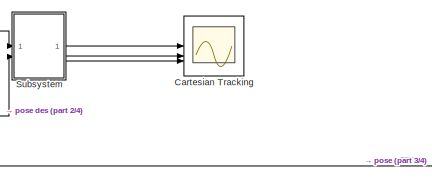
[diagram: root canvas - part 1/4, top center region]
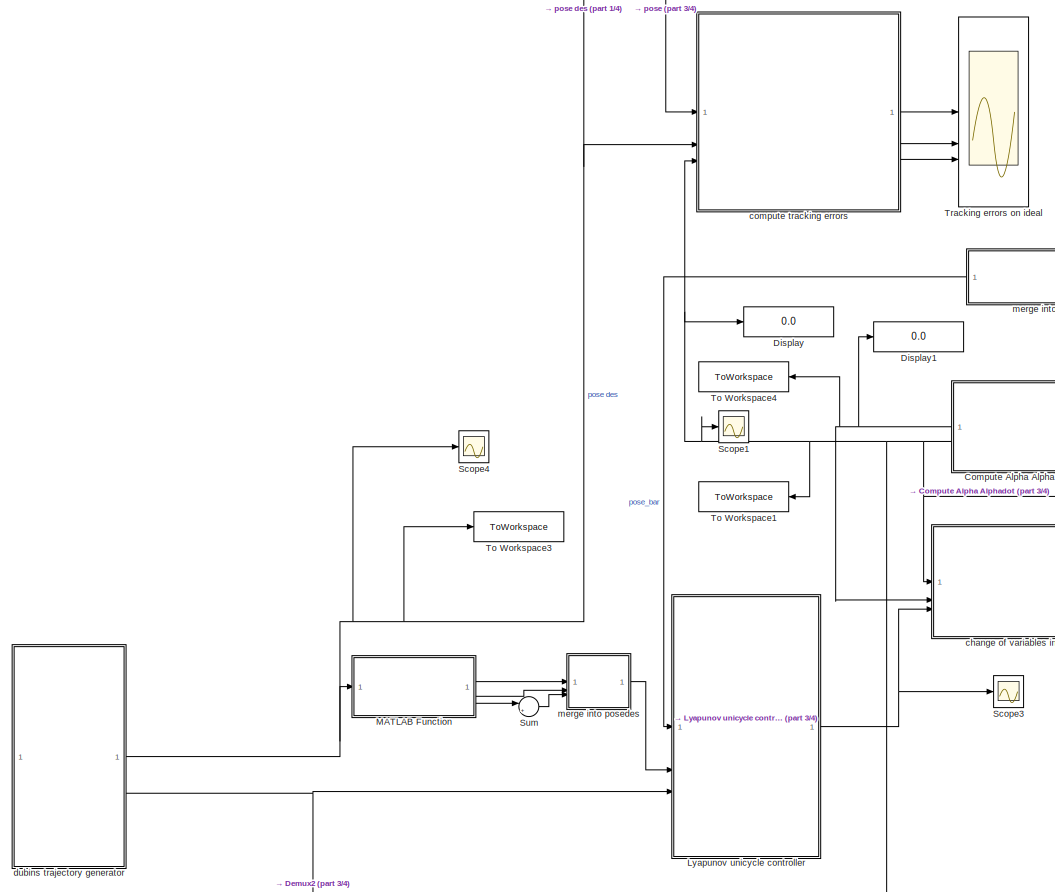
[diagram: root canvas - part 2/4, middle left region]
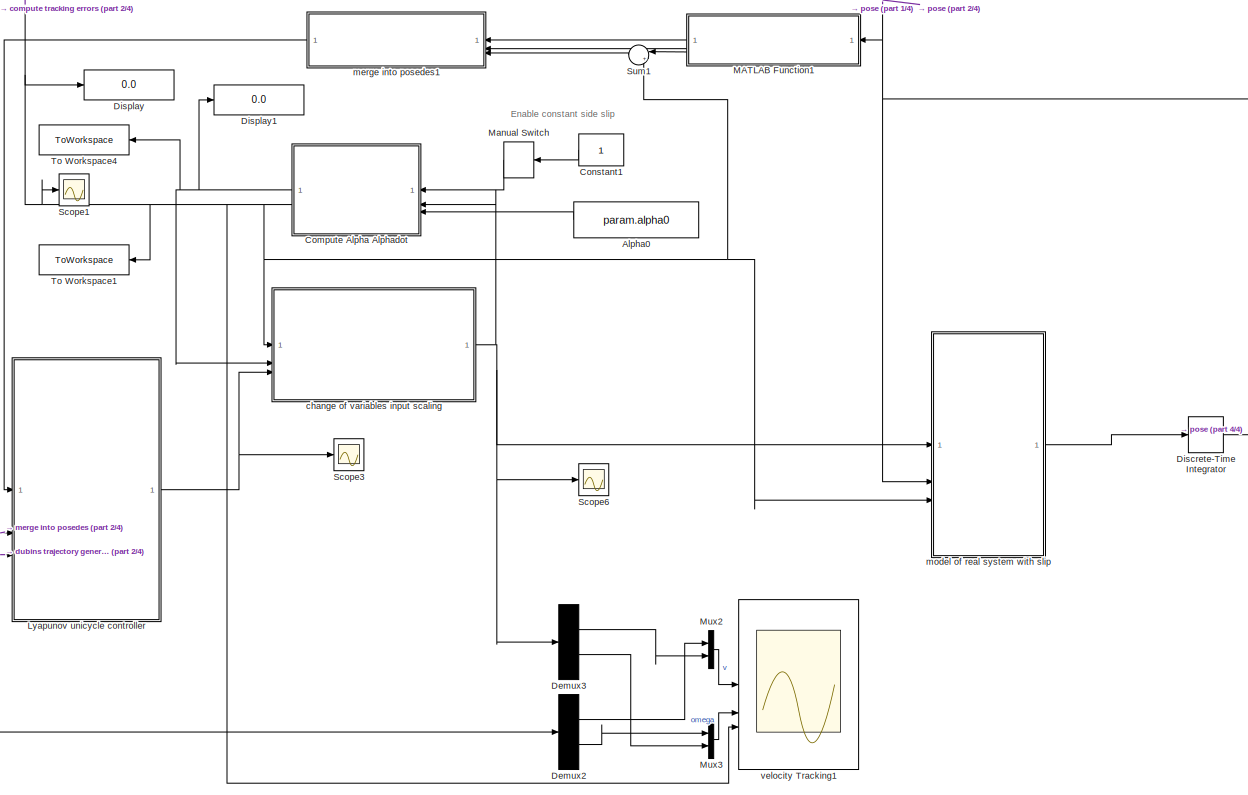
[diagram: root canvas - part 3/4, bottom center region]
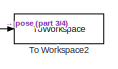
[diagram: root canvas - part 4/4, bottom right region]
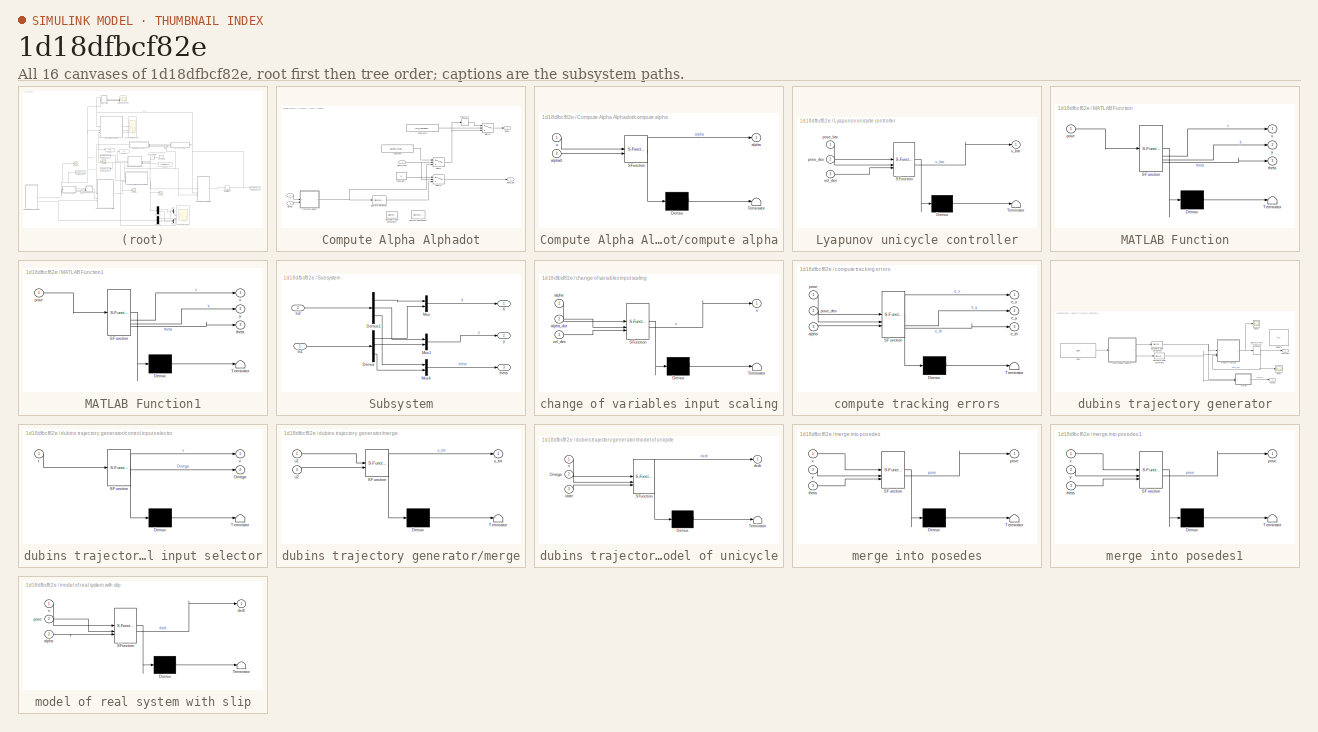
[diagram: thumbnail index - all 16 canvases of the model, root first then tree order]
MODEL slx_1d18dfbcf82e
KIND model
CONFIG AbsTol = auto
CONFIG EnableMultiTasking = off
CONFIG FixedStep = sim_param.dt
CONFIG InitFcn = initfcn
CONFIG MaxStep = auto
CONFIG MinStep = auto
CONFIG RelTol = 1e-3
CONFIG SampleTimeConstraint = Unconstrained
CONFIG SolverName = FixedStepAuto
CONFIG StartTime = 0.0
CONFIG StopTime = sim_param.t_end
BLOCK [Constant] Alpha0
  NameLocation = top
  Value = param.alpha0
BLOCK [Scope] Cartesian Tracking
  Floating = off
  NumInputPorts = 3
  ScopeSpecificationString = Simulink.scopes.TimeScopeBlockCfg('CurrentConfiguration', extmgr.ConfigurationSet(extmgr.Configuration('Core','General UI',true),extmgr.Configuration('Core','Source UI',true),extmgr.Configuration('Sources','WiredSimulink',true,'DataLoggingVariableName','ScopeData2'),extmgr.Configuration('Visuals','Time Domain',true,'SerializedDisplays',{struct('MinYLimReal','-0.15553','MaxYLimReal','0.39976','YLab...<+2811ch>
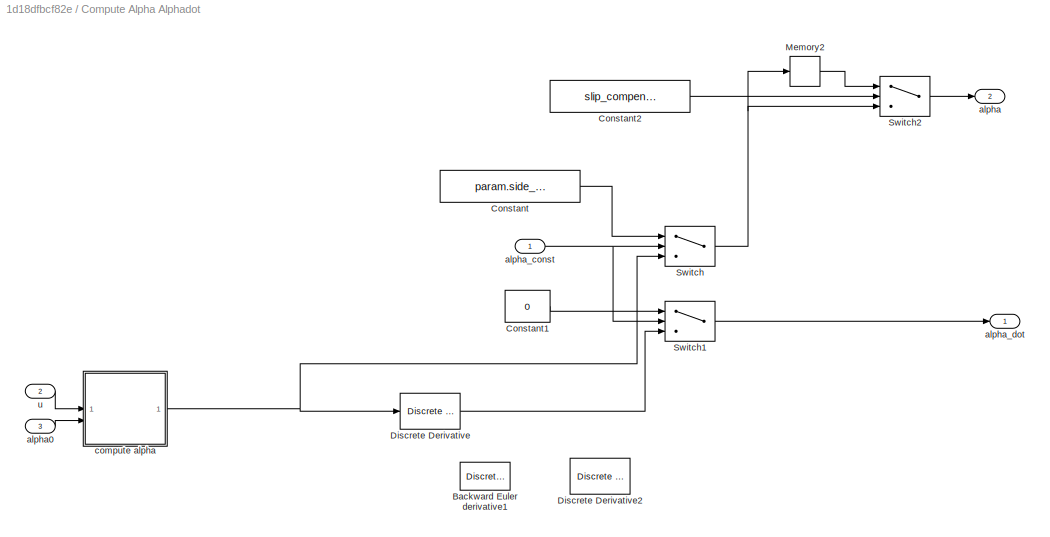
BLOCK [SubSystem] Compute Alpha Alphadot
  NameLocation = top
BLOCK [DiscreteTransferFcn] Compute Alpha Alphadot/Backward Euler derivative1
  Denominator = param.den_filt_be
  InitialStates = 1
  InputPortMap = u0
  Numerator = param.num_filt_be
  SampleTime = sim_param.dt
BLOCK [Constant] Compute Alpha Alphadot/Constant
  Value = param.side_slip_const
BLOCK [Constant] Compute Alpha Alphadot/Constant1
  Value = 0
BLOCK [Constant] Compute Alpha Alphadot/Constant2
  Value = slip_compensation
BLOCK [Reference] Compute Alpha Alphadot/Discrete Derivative  REF=simulink/Discrete/Discrete Derivative
  SourceBlock = simulink/Discrete/Discrete Derivative
  SourceType = Discrete Derivative
BLOCK [Reference] Compute Alpha Alphadot/Discrete Derivative2  REF=simulink/Discrete/Discrete Derivative
  SourceBlock = simulink/Discrete/Discrete Derivative
  SourceType = Discrete Derivative
BLOCK [Memory] Compute Alpha Alphadot/Memory2
BLOCK [Switch] Compute Alpha Alphadot/Switch
  Criteria = u2 > Threshold
  InputSameDT = off
  SaturateOnIntegerOverflow = off
BLOCK [Switch] Compute Alpha Alphadot/Switch1
  Criteria = u2 > Threshold
  InputSameDT = off
  SaturateOnIntegerOverflow = off
BLOCK [Switch] Compute Alpha Alphadot/Switch2
  Criteria = u2 > Threshold
  InputSameDT = off
  SaturateOnIntegerOverflow = off
  Threshold = 0.5
BLOCK [Outport] Compute Alpha Alphadot/alpha
  Port = 2
BLOCK [Inport] Compute Alpha Alphadot/alpha0
  Port = 3
BLOCK [Inport] Compute Alpha Alphadot/alpha_const
BLOCK [Outport] Compute Alpha Alphadot/alpha_dot
BLOCK [SubSystem] Compute Alpha Alphadot/compute alpha
  ErrorFcn = Stateflow.Translate.translate
  LibrarySourceBlock = simulink/User-Defined\nFunctions/MATLAB Function
  PermitHierarchicalResolution = ExplicitOnly
  SFBlockType = MATLAB Function
  TreatAsAtomicUnit = on
BLOCK [Demux] Compute Alpha Alphadot/compute alpha/ Demux 
  Outputs = 1
BLOCK [S-Function] Compute Alpha Alphadot/compute alpha/ SFunction 
  EnableBusSupport = on
  FunctionName = sf_sfun
  PortCounts = [2 2]
  SFcnIsStateOwnerBlock = off
  SFunctionDeploymentMode = off
  Tag = Stateflow S-Function 10
BLOCK [Terminator] Compute Alpha Alphadot/compute alpha/ Terminator 
BLOCK [Outport] Compute Alpha Alphadot/compute alpha/alpha
BLOCK [Inport] Compute Alpha Alphadot/compute alpha/alpha0
  Port = 2
BLOCK [Inport] Compute Alpha Alphadot/compute alpha/u
BLOCK [Inport] Compute Alpha Alphadot/u
  Port = 2
BLOCK [Constant] Constant1
  NameLocation = top
BLOCK [Demux] Demux2
  Outputs = 2
BLOCK [Demux] Demux3
  Outputs = 2
BLOCK [DiscreteIntegrator] Discrete-Time Integrator
  ICPrevOutput = DiscIntNeverNeededParam
  ICPrevScaledInput = DiscIntNeverNeededParam
  InitialCondition = sim_param.initial_state
  InitialConditionSetting = Auto
  SampleTime = sim_param.dt
BLOCK [Display] Display
  Decimation = 1
BLOCK [Display] Display1
  Decimation = 1
BLOCK [SubSystem] Lyapunov unicycle controller
  ErrorFcn = Stateflow.Translate.translate
  LibrarySourceBlock = simulink/User-Defined\nFunctions/MATLAB Function
  PermitHierarchicalResolution = ExplicitOnly
  SFBlockType = MATLAB Function
  TreatAsAtomicUnit = on
BLOCK [Demux] Lyapunov unicycle controller/ Demux 
  Outputs = 1
BLOCK [S-Function] Lyapunov unicycle controller/ SFunction 
  EnableBusSupport = on
  FunctionName = sf_sfun
  Parameters = ctrl_param
  PortCounts = [3 2]
  SFcnIsStateOwnerBlock = off
  SFunctionDeploymentMode = off
  Tag = Stateflow S-Function 3
BLOCK [Terminator] Lyapunov unicycle controller/ Terminator 
BLOCK [Inport] Lyapunov unicycle controller/pose_bar
BLOCK [Inport] Lyapunov unicycle controller/pose_des
  Port = 2
BLOCK [Outport] Lyapunov unicycle controller/u_bar
BLOCK [Inport] Lyapunov unicycle controller/vel_des
  Port = 3
BLOCK [SubSystem] MATLAB Function
  ErrorFcn = Stateflow.Translate.translate
  PermitHierarchicalResolution = ExplicitOnly
  SFBlockType = MATLAB Function
  TreatAsAtomicUnit = on
BLOCK [Demux] MATLAB Function/ Demux 
  Outputs = 1
BLOCK [S-Function] MATLAB Function/ SFunction 
  EnableBusSupport = on
  FunctionName = sf_sfun
  PortCounts = [1 4]
  SFcnIsStateOwnerBlock = off
  SFunctionDeploymentMode = off
  Tag = Stateflow S-Function 5
BLOCK [Terminator] MATLAB Function/ Terminator 
BLOCK [Inport] MATLAB Function/pose
BLOCK [Outport] MATLAB Function/theta
  Port = 3
BLOCK [Outport] MATLAB Function/x
BLOCK [Outport] MATLAB Function/y
  Port = 2
BLOCK [SubSystem] MATLAB Function1
  ErrorFcn = Stateflow.Translate.translate
  NameLocation = top
  PermitHierarchicalResolution = ExplicitOnly
  SFBlockType = MATLAB Function
  TreatAsAtomicUnit = on
BLOCK [Demux] MATLAB Function1/ Demux 
  Outputs = 1
BLOCK [S-Function] MATLAB Function1/ SFunction 
  EnableBusSupport = on
  FunctionName = sf_sfun
  PortCounts = [1 4]
  SFcnIsStateOwnerBlock = off
  SFunctionDeploymentMode = off
  Tag = Stateflow S-Function 11
BLOCK [Terminator] MATLAB Function1/ Terminator 
BLOCK [Inport] MATLAB Function1/pose
BLOCK [Outport] MATLAB Function1/theta
  Port = 3
BLOCK [Outport] MATLAB Function1/x
BLOCK [Outport] MATLAB Function1/y
  Port = 2
BLOCK [ManualSwitch] Manual Switch
  CurrentSetting = 0
  NameLocation = top
BLOCK [Mux] Mux2
  DisplayOption = bar
  Inputs = 2
BLOCK [Mux] Mux3
  DisplayOption = bar
  Inputs = 2
BLOCK [Scope] Scope1
  Floating = off
  NumInputPorts = 1
  ScopeSpecificationString = Simulink.scopes.TimeScopeBlockCfg('CurrentConfiguration', extmgr.ConfigurationSet(extmgr.Configuration('Core','General UI',true),extmgr.Configuration('Core','Source UI',true),extmgr.Configuration('Sources','WiredSimulink',true,'DataLoggingVariableName','ScopeData3'),extmgr.Configuration('Visuals','Time Domain',true,'SerializedDisplays',{struct('MinYLimReal','-16974272.04659','MaxYLimReal','1845815...<+1458ch>
BLOCK [Scope] Scope3
  Floating = off
  NumInputPorts = 1
  ScopeSpecificationString = Simulink.scopes.TimeScopeBlockCfg('CurrentConfiguration', extmgr.ConfigurationSet(extmgr.Configuration('Core','General UI',true),extmgr.Configuration('Core','Source UI',true),extmgr.Configuration('Sources','WiredSimulink',true,'DataLoggingVariableName','ScopeData3'),extmgr.Configuration('Visuals','Time Domain',true,'SerializedDisplays',{struct('MinYLimReal','-7303396207497069105619683401269248.000...<+1730ch>
BLOCK [Scope] Scope4
  Floating = off
  NumInputPorts = 1
  ScopeSpecificationString = Simulink.scopes.TimeScopeBlockCfg('CurrentConfiguration', extmgr.ConfigurationSet(extmgr.Configuration('Core','General UI',true),extmgr.Configuration('Core','Source UI',true),extmgr.Configuration('Sources','WiredSimulink',true,'DataLoggingVariableName','ScopeData4'),extmgr.Configuration('Visuals','Time Domain',true,'SerializedDisplays',{struct('MinYLimReal','-0.15044','MaxYLimReal','1.35396','YLab...<+1537ch>
BLOCK [Scope] Scope6
  Floating = off
  NumInputPorts = 1
  ScopeSpecificationString = Simulink.scopes.TimeScopeBlockCfg('CurrentConfiguration', extmgr.ConfigurationSet(extmgr.Configuration('Core','General UI',true),extmgr.Configuration('Core','Source UI',true),extmgr.Configuration('Sources','WiredSimulink',true,'DataLoggingVariableName','ScopeData4'),extmgr.Configuration('Visuals','Time Domain',true,'SerializedDisplays',{struct('MinYLimReal','-0.01543','MaxYLimReal','1.22393','YLab...<+1503ch>
BLOCK [SubSystem] Subsystem
BLOCK [Demux] Subsystem/Demux
  Outputs = 3
BLOCK [Demux] Subsystem/Demux1
  Outputs = 3
BLOCK [Inport] Subsystem/In1
BLOCK [Inport] Subsystem/In2
  Port = 2
BLOCK [Mux] Subsystem/Mux
  DisplayOption = bar
  Inputs = 2
BLOCK [Mux] Subsystem/Mux1
  DisplayOption = bar
  Inputs = 2
BLOCK [Mux] Subsystem/Mux4
  DisplayOption = bar
  Inputs = 2
BLOCK [Outport] Subsystem/X
BLOCK [Outport] Subsystem/theta
  Port = 3
BLOCK [Outport] Subsystem/y
  Port = 2
BLOCK [Sum] Sum
  Inputs = |+-
BLOCK [Sum] Sum1
  Inputs = |++
  NameLocation = top
BLOCK [ToWorkspace] To Workspace1
  Decimation = sim_param.decimation
  FixptAsFi = on
  MaxDataPoints = inf
  NameLocation = top
  SampleTime = -1
  SaveFormat = Timeseries
  VariableName = alpha
BLOCK [ToWorkspace] To Workspace2
  Decimation = sim_param.decimation
  FixptAsFi = on
  MaxDataPoints = inf
  SampleTime = -1
  SaveFormat = Timeseries
  VariableName = x
BLOCK [ToWorkspace] To Workspace3
  Decimation = sim_param.decimation
  FixptAsFi = on
  MaxDataPoints = inf
  SampleTime = -1
  SaveFormat = Timeseries
  VariableName = x_des
BLOCK [ToWorkspace] To Workspace4
  Decimation = sim_param.decimation
  FixptAsFi = on
  MaxDataPoints = inf
  NameLocation = top
  SampleTime = -1
  SaveFormat = Timeseries
  VariableName = alpha_dot
BLOCK [Scope] Tracking errors on ideal
  Floating = off
  NumInputPorts = 3
  ScopeSpecificationString = Simulink.scopes.TimeScopeBlockCfg('CurrentConfiguration', extmgr.ConfigurationSet(extmgr.Configuration('Core','General UI',true),extmgr.Configuration('Core','Source UI',true),extmgr.Configuration('Sources','WiredSimulink',true,'DataLoggingVariableName','ScopeData1'),extmgr.Configuration('Visuals','Time Domain',true,'SerializedDisplays',{struct('MinYLimReal','-0.13222','MaxYLimReal','0.18999','YLab...<+2820ch>
BLOCK [SubSystem] change of variables input scaling
  ErrorFcn = Stateflow.Translate.translate
  LibrarySourceBlock = simulink/User-Defined\nFunctions/MATLAB Function
  PermitHierarchicalResolution = ExplicitOnly
  SFBlockType = MATLAB Function
  TreatAsAtomicUnit = on
BLOCK [Demux] change of variables input scaling/ Demux 
  Outputs = 1
BLOCK [S-Function] change of variables input scaling/ SFunction 
  EnableBusSupport = on
  FunctionName = sf_sfun
  Parameters = slip_compensation
  PortCounts = [3 2]
  SFcnIsStateOwnerBlock = off
  SFunctionDeploymentMode = off
  Tag = Stateflow S-Function 6
BLOCK [Terminator] change of variables input scaling/ Terminator 
BLOCK [Inport] change of variables input scaling/alpha
BLOCK [Inport] change of variables input scaling/alpha_dot
  Port = 2
BLOCK [Outport] change of variables input scaling/u
BLOCK [Inport] change of variables input scaling/vel_des
  Port = 3
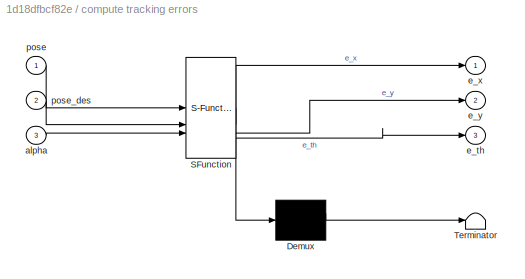
BLOCK [SubSystem] compute tracking errors
  ErrorFcn = Stateflow.Translate.translate
  LibrarySourceBlock = simulink/User-Defined\nFunctions/MATLAB Function
  PermitHierarchicalResolution = ExplicitOnly
  SFBlockType = MATLAB Function
  TreatAsAtomicUnit = on
BLOCK [Demux] compute tracking errors/ Demux 
  Outputs = 1
BLOCK [S-Function] compute tracking errors/ SFunction 
  EnableBusSupport = on
  FunctionName = sf_sfun
  PortCounts = [3 4]
  SFcnIsStateOwnerBlock = off
  SFunctionDeploymentMode = off
  Tag = Stateflow S-Function 8
BLOCK [Terminator] compute tracking errors/ Terminator 
BLOCK [Inport] compute tracking errors/alpha
  Port = 3
BLOCK [Outport] compute tracking errors/e_th
  Port = 3
BLOCK [Outport] compute tracking errors/e_x
BLOCK [Outport] compute tracking errors/e_y
  Port = 2
BLOCK [Inport] compute tracking errors/pose
BLOCK [Inport] compute tracking errors/pose_des
  Port = 2
BLOCK [SubSystem] dubins trajectory generator
BLOCK [Scope] dubins trajectory generator/Alpha
  Floating = off
  NumInputPorts = 1
  ScopeSpecificationString = Simulink.scopes.TimeScopeBlockCfg('CurrentConfiguration', extmgr.ConfigurationSet(extmgr.Configuration('Core','General UI',true),extmgr.Configuration('Core','Source UI',true),extmgr.Configuration('Sources','WiredSimulink',true,'DataLoggingVariableName','ScopeData1'),extmgr.Configuration('Visuals','Time Domain',true,'SerializedDisplays',{struct('MinYLimReal','-0.11633','MaxYLimReal','1.04694','YLab...<+1433ch>
BLOCK [Scope] dubins trajectory generator/Alpha1
  Floating = off
  NumInputPorts = 1
  ScopeSpecificationString = Simulink.scopes.TimeScopeBlockCfg('CurrentConfiguration', extmgr.ConfigurationSet(extmgr.Configuration('Core','General UI',true),extmgr.Configuration('Core','Source UI',true),extmgr.Configuration('Sources','WiredSimulink',true,'DataLoggingVariableName','ScopeData2'),extmgr.Configuration('Visuals','Time Domain',true,'SerializedDisplays',{struct('MinYLimReal','-0.0125','MaxYLimReal','0.1125','YLabel...<+1426ch>
BLOCK [DiscreteTransferFcn] dubins trajectory generator/Backward Euler derivative1
  Denominator = param.den_lowpass_be
  InitialStates = 1
  InputPortMap = u0
  Numerator = param.num_lowpass_be
  SampleTime = sim_param.dt
BLOCK [DiscreteTransferFcn] dubins trajectory generator/Backward Euler derivative2
  Denominator = param.den_lowpass_be
  InitialStates = 1
  InputPortMap = u0
  Numerator = param.num_lowpass_be
  SampleTime = sim_param.dt
BLOCK [Clock] dubins trajectory generator/Clock
  Decimation = 1
  DisplayTime = on
BLOCK [DiscreteIntegrator] dubins trajectory generator/Discrete-Time Integrator
  ICPrevOutput = DiscIntNeverNeededParam
  ICPrevScaledInput = DiscIntNeverNeededParam
  InitialCondition = path_param.init_pose
  InitialConditionSetting = Auto
  SampleTime = sim_param.dt
BLOCK [Display] dubins trajectory generator/Display2
  Decimation = 1
BLOCK [SubSystem] dubins trajectory generator/control input selector
  ErrorFcn = Stateflow.Translate.translate
  LibrarySourceBlock = simulink/User-Defined\nFunctions/MATLAB Function
  PermitHierarchicalResolution = ExplicitOnly
  SFBlockType = MATLAB Function
  TreatAsAtomicUnit = on
BLOCK [Demux] dubins trajectory generator/control input selector/ Demux 
  Outputs = 1
BLOCK [S-Function] dubins trajectory generator/control input selector/ SFunction 
  EnableBusSupport = on
  FunctionName = sf_sfun
  Parameters = path_param
  PortCounts = [1 3]
  SFcnIsStateOwnerBlock = off
  SFunctionDeploymentMode = off
  Tag = Stateflow S-Function 1
BLOCK [Terminator] dubins trajectory generator/control input selector/ Terminator 
BLOCK [Outport] dubins trajectory generator/control input selector/Omega
  Port = 2
BLOCK [Inport] dubins trajectory generator/control input selector/t
BLOCK [Outport] dubins trajectory generator/control input selector/v
BLOCK [SubSystem] dubins trajectory generator/merge
  ErrorFcn = Stateflow.Translate.translate
  LibrarySourceBlock = simulink/User-Defined\nFunctions/MATLAB Function
  PermitHierarchicalResolution = ExplicitOnly
  SFBlockType = MATLAB Function
  TreatAsAtomicUnit = on
BLOCK [Demux] dubins trajectory generator/merge/ Demux 
  Outputs = 1
BLOCK [S-Function] dubins trajectory generator/merge/ SFunction 
  EnableBusSupport = on
  FunctionName = sf_sfun
  PortCounts = [2 2]
  SFcnIsStateOwnerBlock = off
  SFunctionDeploymentMode = off
  Tag = Stateflow S-Function 7
BLOCK [Terminator] dubins trajectory generator/merge/ Terminator 
BLOCK [Inport] dubins trajectory generator/merge/u1
BLOCK [Inport] dubins trajectory generator/merge/u2
  Port = 2
BLOCK [Outport] dubins trajectory generator/merge/u_tot
BLOCK [SubSystem] dubins trajectory generator/model of unicycle
  ErrorFcn = Stateflow.Translate.translate
  LibrarySourceBlock = simulink/User-Defined\nFunctions/MATLAB Function
  PermitHierarchicalResolution = ExplicitOnly
  SFBlockType = MATLAB Function
  TreatAsAtomicUnit = on
BLOCK [Demux] dubins trajectory generator/model of unicycle/ Demux 
  Outputs = 1
BLOCK [S-Function] dubins trajectory generator/model of unicycle/ SFunction 
  EnableBusSupport = on
  FunctionName = sf_sfun
  PortCounts = [3 2]
  SFcnIsStateOwnerBlock = off
  SFunctionDeploymentMode = off
  Tag = Stateflow S-Function 9
BLOCK [Terminator] dubins trajectory generator/model of unicycle/ Terminator 
BLOCK [Inport] dubins trajectory generator/model of unicycle/Omega
  Port = 2
BLOCK [Outport] dubins trajectory generator/model of unicycle/dxdt
BLOCK [Inport] dubins trajectory generator/model of unicycle/state
  Port = 3
BLOCK [Inport] dubins trajectory generator/model of unicycle/v
BLOCK [Outport] dubins trajectory generator/pose_des
BLOCK [Outport] dubins trajectory generator/vel_des
  Port = 2
BLOCK [SubSystem] merge into posedes
  ErrorFcn = Stateflow.Translate.translate
  PermitHierarchicalResolution = ExplicitOnly
  SFBlockType = MATLAB Function
  TreatAsAtomicUnit = on
BLOCK [Demux] merge into posedes/ Demux 
  Outputs = 1
BLOCK [S-Function] merge into posedes/ SFunction 
  EnableBusSupport = on
  FunctionName = sf_sfun
  PortCounts = [3 2]
  SFcnIsStateOwnerBlock = off
  SFunctionDeploymentMode = off
  Tag = Stateflow S-Function 4
BLOCK [Terminator] merge into posedes/ Terminator 
BLOCK [Outport] merge into posedes/pose
BLOCK [Inport] merge into posedes/theta
  Port = 3
BLOCK [Inport] merge into posedes/x
BLOCK [Inport] merge into posedes/y
  Port = 2
BLOCK [SubSystem] merge into posedes1
  ErrorFcn = Stateflow.Translate.translate
  NameLocation = top
  PermitHierarchicalResolution = ExplicitOnly
  SFBlockType = MATLAB Function
  TreatAsAtomicUnit = on
BLOCK [Demux] merge into posedes1/ Demux 
  Outputs = 1
BLOCK [S-Function] merge into posedes1/ SFunction 
  EnableBusSupport = on
  FunctionName = sf_sfun
  PortCounts = [3 2]
  SFcnIsStateOwnerBlock = off
  SFunctionDeploymentMode = off
  Tag = Stateflow S-Function 12
BLOCK [Terminator] merge into posedes1/ Terminator 
BLOCK [Outport] merge into posedes1/pose
BLOCK [Inport] merge into posedes1/theta
  Port = 3
BLOCK [Inport] merge into posedes1/x
BLOCK [Inport] merge into posedes1/y
  Port = 2
BLOCK [SubSystem] model of real system with slip
  ErrorFcn = Stateflow.Translate.translate
  LibrarySourceBlock = simulink/User-Defined\nFunctions/MATLAB Function
  PermitHierarchicalResolution = ExplicitOnly
  SFBlockType = MATLAB Function
  TreatAsAtomicUnit = on
BLOCK [Demux] model of real system with slip/ Demux 
  Outputs = 1
BLOCK [S-Function] model of real system with slip/ SFunction 
  EnableBusSupport = on
  FunctionName = sf_sfun
  PortCounts = [3 2]
  SFcnIsStateOwnerBlock = off
  SFunctionDeploymentMode = off
  Tag = Stateflow S-Function 2
BLOCK [Terminator] model of real system with slip/ Terminator 
BLOCK [Inport] model of real system with slip/alpha
  Port = 3
BLOCK [Outport] model of real system with slip/dxdt
BLOCK [Inport] model of real system with slip/pose
  Port = 2
BLOCK [Inport] model of real system with slip/u
BLOCK [Scope] velocity Tracking1
  Floating = off
  NumInputPorts = 3
  ScopeSpecificationString = Simulink.scopes.TimeScopeBlockCfg('CurrentConfiguration', extmgr.ConfigurationSet(extmgr.Configuration('Core','General UI',true),extmgr.Configuration('Core','Source UI',true),extmgr.Configuration('Sources','WiredSimulink',true,'DataLoggingVariableName','ScopeData1'),extmgr.Configuration('Visuals','Time Domain',true,'SerializedDisplays',{struct('MinYLimReal','-0.27645','MaxYLimReal','2.25294','YLab...<+2768ch>
ANNOTATION (root): Enable constant side slip
LINE Alpha0:1 -> Compute Alpha Alphadot:3
LINE Compute Alpha Alphadot/Constant1:1 -> Compute Alpha Alphadot/Switch1:1
LINE Compute Alpha Alphadot/Constant2:1 -> Compute Alpha Alphadot/Switch2:2
LINE Compute Alpha Alphadot/Constant:1 -> Compute Alpha Alphadot/Switch:1
LINE Compute Alpha Alphadot/Discrete Derivative:1 -> Compute Alpha Alphadot/Switch1:3
LINE Compute Alpha Alphadot/Memory2:1 -> Compute Alpha Alphadot/Switch2:1
LINE Compute Alpha Alphadot/Switch1:1 -> Compute Alpha Alphadot/alpha_dot:1
LINE Compute Alpha Alphadot/Switch2:1 -> Compute Alpha Alphadot/alpha:1
NET Compute Alpha Alphadot/Switch:1 -> Compute Alpha Alphadot/Memory2:1, Compute Alpha Alphadot/Switch2:3
LINE Compute Alpha Alphadot/alpha0:1 -> Compute Alpha Alphadot/compute alpha:2
NET Compute Alpha Alphadot/alpha_const:1 -> Compute Alpha Alphadot/Switch1:2, Compute Alpha Alphadot/Switch:2
NET Compute Alpha Alphadot/compute alpha:1 -> Compute Alpha Alphadot/Discrete Derivative:1, Compute Alpha Alphadot/Switch:3
LINE Compute Alpha Alphadot/u:1 -> Compute Alpha Alphadot/compute alpha:1
NET Compute Alpha Alphadot:1 -> Display1:1, To Workspace4:1, change of variables input scaling:2
NET Compute Alpha Alphadot:2 -> Display:1, Scope1:1, Sum1:2, To Workspace1:1, change of variables input scaling:1, compute tracking errors:3, model of real system with slip:3, velocity Tracking1:3
LINE Constant1:1 -> Manual Switch:1
LINE Demux2:1 -> Mux2:1
LINE Demux2:2 -> Mux3:1
LINE Demux3:1 -> Mux2:2
LINE Demux3:2 -> Mux3:2
NET Discrete-Time Integrator:1 -> MATLAB Function1:1, Subsystem:1, To Workspace2:1, compute tracking errors:1, model of real system with slip:2
NET Lyapunov unicycle controller:1 -> Scope3:1, change of variables input scaling:3
LINE MATLAB Function1:1 -> merge into posedes1:1
LINE MATLAB Function1:2 -> merge into posedes1:2
LINE MATLAB Function1:3 -> Sum1:1
LINE MATLAB Function:1 -> merge into posedes:1
LINE MATLAB Function:2 -> merge into posedes:2
LINE MATLAB Function:3 -> Sum:1
LINE Manual Switch:1 -> Compute Alpha Alphadot:1
LINE Mux2:1 -> velocity Tracking1:1
LINE Mux3:1 -> velocity Tracking1:2
LINE Subsystem/Demux1:1 -> Subsystem/Mux:1
LINE Subsystem/Demux1:2 -> Subsystem/Mux1:1
LINE Subsystem/Demux1:3 -> Subsystem/Mux4:1
LINE Subsystem/Demux:1 -> Subsystem/Mux:2
LINE Subsystem/Demux:2 -> Subsystem/Mux1:2
LINE Subsystem/Demux:3 -> Subsystem/Mux4:2
LINE Subsystem/In1:1 -> Subsystem/Demux:1
LINE Subsystem/In2:1 -> Subsystem/Demux1:1
LINE Subsystem/Mux1:1 -> Subsystem/y:1
LINE Subsystem/Mux4:1 -> Subsystem/theta:1
LINE Subsystem/Mux:1 -> Subsystem/X:1
LINE Subsystem:1 -> Cartesian Tracking:1
LINE Subsystem:2 -> Cartesian Tracking:2
LINE Subsystem:3 -> Cartesian Tracking:3
LINE Sum1:1 -> merge into posedes1:3
LINE Sum:1 -> merge into posedes:3
NET change of variables input scaling:1 -> Compute Alpha Alphadot:2, Demux3:1, Scope6:1, model of real system with slip:1
LINE compute tracking errors:1 -> Tracking errors on ideal:1
LINE compute tracking errors:2 -> Tracking errors on ideal:2
LINE compute tracking errors:3 -> Tracking errors on ideal:3
NET dubins trajectory generator/Backward Euler derivative1:1 -> dubins trajectory generator/merge:2, dubins trajectory generator/model of unicycle:2
NET dubins trajectory generator/Backward Euler derivative2:1 -> dubins trajectory generator/merge:1, dubins trajectory generator/model of unicycle:1
LINE dubins trajectory generator/Clock:1 -> dubins trajectory generator/control input selector:1
NET dubins trajectory generator/Discrete-Time Integrator:1 -> dubins trajectory generator/Alpha:1, dubins trajectory generator/model of unicycle:3, dubins trajectory generator/pose_des:1
LINE dubins trajectory generator/control input selector:1 -> dubins trajectory generator/Backward Euler derivative2:1
LINE dubins trajectory generator/control input selector:2 -> dubins trajectory generator/Backward Euler derivative1:1
LINE dubins trajectory generator/merge:1 -> dubins trajectory generator/vel_des:1
NET dubins trajectory generator/model of unicycle:1 -> dubins trajectory generator/Alpha1:1, dubins trajectory generator/Discrete-Time Integrator:1
NET dubins trajectory generator:1 -> MATLAB Function:1, Scope4:1, Subsystem:2, To Workspace3:1, compute tracking errors:2
NET dubins trajectory generator:2 -> Demux2:1, Lyapunov unicycle controller:3
LINE merge into posedes1:1 -> Lyapunov unicycle controller:1
LINE merge into posedes:1 -> Lyapunov unicycle controller:2
LINE model of real system with slip:1 -> Discrete-Time Integrator:1
note: NET lines group one-source signal fan-out (src -> all destinations, sorted); 1:1 wires keep LINE
CHART dubins trajectory generator/model of unicycle states=1 transitions=1
  STATE_LABEL 'eML_blk_kernel()'
  STATE_LABEL 'SCRIPT:\nfunction dxdt = fcn(v, Omega, state)\n\n    theta = state(3);\n    \n    dxdt = [v*cos(theta) , v*sin(theta), Omega];\n   \n\nend\n'
CHART Compute Alpha Alphadot/compute alpha states=1 transitions=1
  STATE_LABEL 'eML_blk_kernel()'
  STATE_LABEL 'SCRIPT:\nfunction alpha = fcn(u, alpha0)\n    v = u(1);\n    omega = u(2);\n    %alpha = alpha0*omega^2/((v+0.0001)^2);\n  \n    if (omega == 0)\n        turning_radius = 0;\n    else \n        turning_radius = v/omega;\n    end\n    % model side slip as a plyinomial in the curvature\n\tK = 1/(turning_radius+0.00001);\n\talpha = -0.0610487 + (-0.0185)*K +  (-0.0014)*(K*K); % simplified notation\n\t% alpha = a0 + a...<+179ch>'
CHART MATLAB Function1 states=1 transitions=1
  STATE_LABEL 'eML_blk_kernel()'
  STATE_LABEL 'SCRIPT:\nfunction [x,y,theta] = getPoseComponents(pose)\nx = pose(1);\ny = pose(2);\ntheta = pose(3);\n'
CHART merge into posedes1 states=1 transitions=1
  STATE_LABEL 'eML_blk_kernel()'
  STATE_LABEL 'SCRIPT:\nfunction pose = getPoseComponents(x,y,theta)\npose = [x,y,theta];\n'
CHART dubins trajectory generator/control input selector states=1 transitions=1
  STATE_LABEL 'eML_blk_kernel()'
  STATE_LABEL "SCRIPT:\nfunction [v,Omega] = fcn(t, path_param)\n    % select the right control input in function of the current time. In\n    % the params 5 vectors must be defined:\n    % time_vec : list of n times [t1... tn]\n    % \n\n    idx = find(t >= path_param.time_vec, 1, 'last');\n    idx = idx(1);\n    if(idx >= length(path_param.linear_velocity.q))\n        idx = length(path_param.linear_velocity.q);\n    end\n...<+240ch>"
CHART model of real system with slip states=1 transitions=1
  STATE_LABEL 'eML_blk_kernel()'
  STATE_LABEL 'SCRIPT:\nfunction dxdt = fcn(u, pose, alpha)\n\n    theta = pose(3);\n    \n    v     = u(1);\n    Omega = u(2);\n\n    dxdt = [v*cos(theta + alpha) / cos(alpha), v*sin(theta + alpha) / cos(alpha), Omega];\n   \nend'
CHART Lyapunov unicycle controller states=1 transitions=1
  STATE_LABEL 'eML_blk_kernel()'
  STATE_LABEL 'SCRIPT:\nfunction u_bar = fcn(pose_bar, pose_des, vel_des, ctrl_param)\n    % compute the control for a unicycle using Lyapunov theory\n    u_bar = zeros(1,2);\n\n    theta_des = pose_des(3);\n    theta_bar = pose_bar(3);\n\n \n \n    if ctrl_param.controller_type == 1\n\n        error_x     = pose_bar(1) - pose_des(1);\n        error_y     = pose_bar(2) - pose_des(2);\n        error_theta = theta_bar - theta_d...<+1382ch>'
CHART merge into posedes states=1 transitions=1
  STATE_LABEL 'eML_blk_kernel()'
  STATE_LABEL 'SCRIPT:\nfunction pose = getPoseComponents(x,y,theta)\npose = [x,y,theta];\n'
CHART MATLAB Function states=1 transitions=1
  STATE_LABEL 'eML_blk_kernel()'
  STATE_LABEL 'SCRIPT:\nfunction [x,y,theta] = getPoseComponents(pose)\nx = pose(1);\ny = pose(2);\ntheta = pose(3);\n'
CHART change of variables input scaling states=1 transitions=1
  STATE_LABEL 'eML_blk_kernel()'
  STATE_LABEL 'SCRIPT:\nfunction u = fcn(alpha, alpha_dot,vel_des, slip_compensation)\n    u = zeros(1,2);\n\n    v_bar = vel_des(1);\n    Omega_bar = vel_des(2);\n       \n\n   if (slip_compensation == 0) \n        u = vel_des;\n   else\n        u(1) = v_bar * cos(alpha); \n        u(2) = Omega_bar - alpha_dot;\n   end\nend'
CHART dubins trajectory generator/merge states=1 transitions=1
  STATE_LABEL 'eML_blk_kernel()'
  STATE_LABEL 'SCRIPT:\nfunction u_tot = fcn(u1,u2)\n    u_tot = [u1,u2];\nend\n'
CHART compute tracking errors states=1 transitions=1
  STATE_LABEL 'eML_blk_kernel()'
  STATE_LABEL 'SCRIPT:\nfunction [e_x,e_y, e_th] = fcn(pose, pose_des, alpha)\n    % compute the tracking errors with respect to the reference input. Note that the\n    % orientation error is not the one of the robot but takes into account\n    % the side slip angle.\n\n    theta_des = pose_des(3);\n    theta = pose(3);\n\n    e_x = pose(1)-pose_des(1);\n    e_y = pose(2)-pose_des(2);\n    e_th = (theta+alpha)  - theta_des...<+409ch>'
CHART  states=0 transitions=0
CHART  states=0 transitions=0
CHART  states=0 transitions=0
CHART  states=0 transitions=0
CHART  states=0 transitions=0
CHART  states=0 transitions=0
CHART  states=0 transitions=0
CHART  states=0 transitions=0
CHART  states=0 transitions=0
CHART  states=0 transitions=0
CHART  states=0 transitions=0
CHART  states=0 transitions=0
